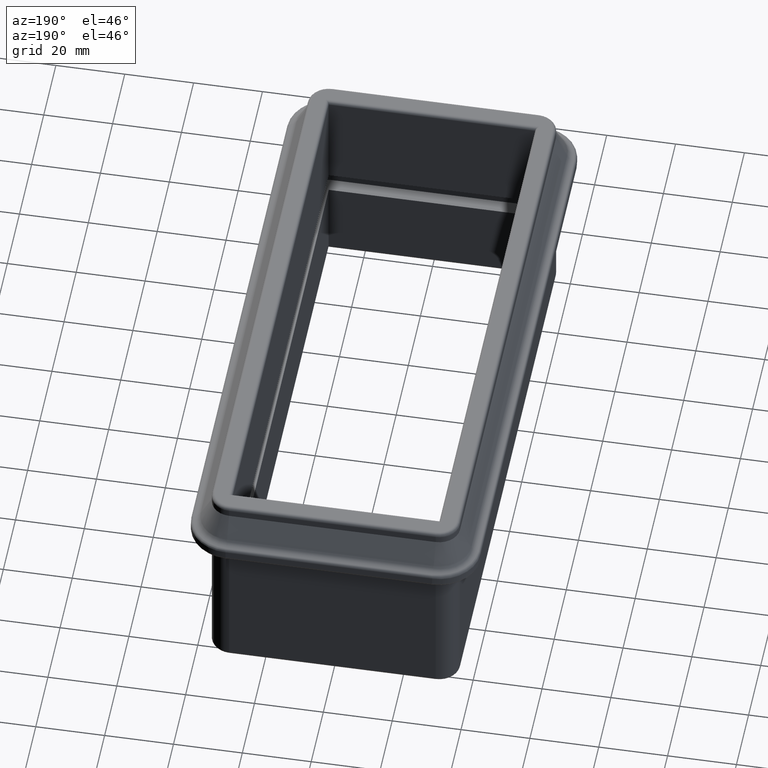
[diagram: clean part render]
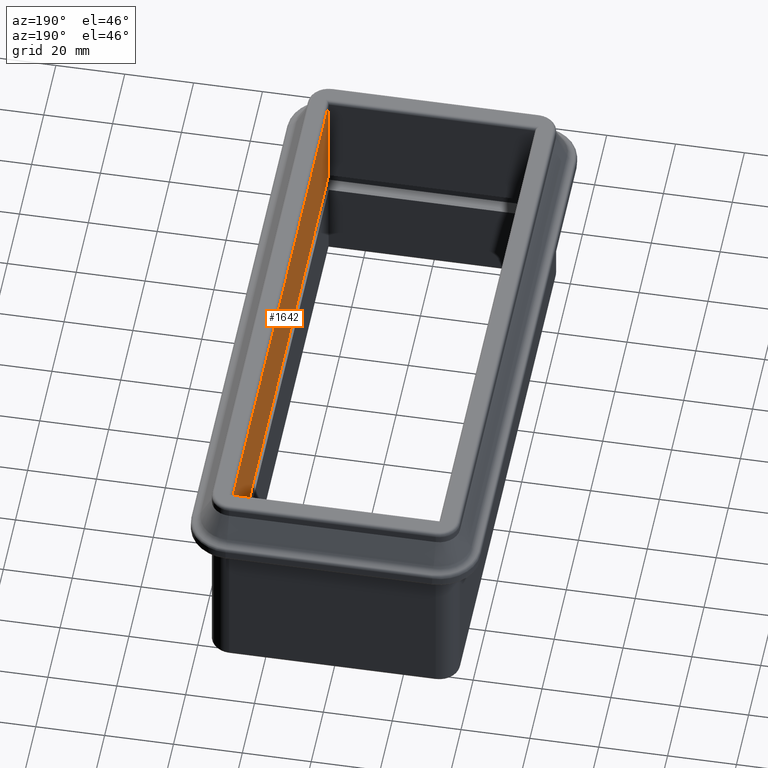
[diagram: same view with one face highlighted and labeled with its STEP entity id]
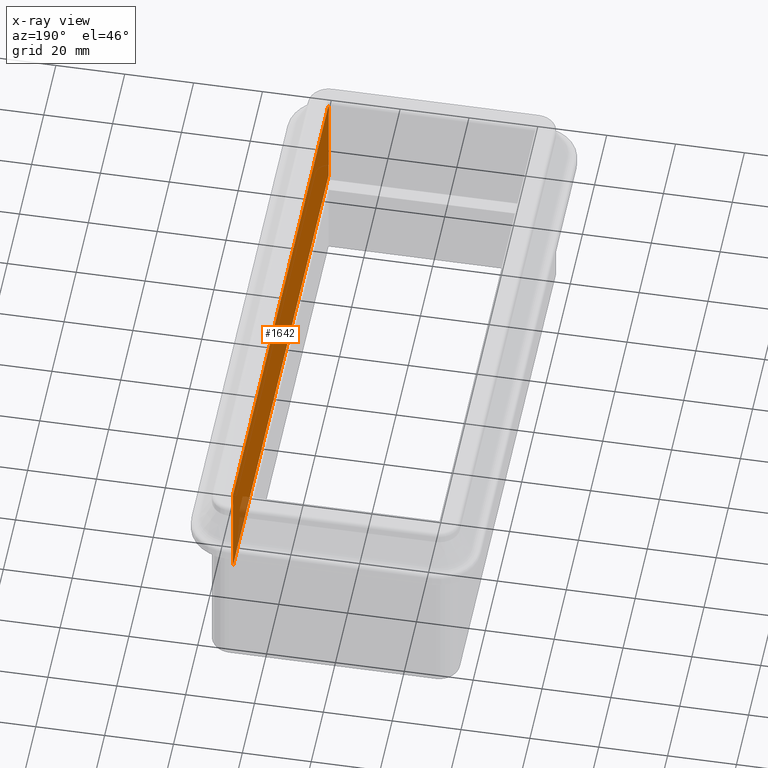
[diagram: x-ray of the same camera — body ghosted, the highlighted face saturated]
A machine part, auxiliary view. The second image highlights one B-rep face of the part: STEP entity #1642.
The next image is the same camera in x-ray: the body ghosted, the highlighted face saturated — about 4% of this face is hidden behind the body in this view.
In plain terms, the highlighted planar face has unit normal (-1, -0, -0).
Its self-contained STEP definition (entity closure, byte-faithful):
#41=PLANE('',#1856);
#155=FACE_OUTER_BOUND('',#266,.T.);
#266=EDGE_LOOP('',(#1332,#1333,#1334,#1335));
#380=LINE('',#2801,#508);
#384=LINE('',#2815,#512);
#387=LINE('',#2821,#515);
#388=LINE('',#2822,#516);
#508=VECTOR('',#2284,10.);
#512=VECTOR('',#2302,10.);
#515=VECTOR('',#2307,10.);
#516=VECTOR('',#2308,10.);
#760=VERTEX_POINT('',#2798);
#761=VERTEX_POINT('',#2800);
#764=VERTEX_POINT('',#2814);
#766=VERTEX_POINT('',#2820);
#958=EDGE_CURVE('',#760,#761,#380,.T.);
#965=EDGE_CURVE('',#764,#761,#384,.T.);
#968=EDGE_CURVE('',#766,#760,#387,.T.);
#969=EDGE_CURVE('',#764,#766,#388,.T.);
#1332=ORIENTED_EDGE('',*,*,#958,.F.);
#1333=ORIENTED_EDGE('',*,*,#968,.F.);
#1334=ORIENTED_EDGE('',*,*,#969,.F.);
#1335=ORIENTED_EDGE('',*,*,#965,.T.);
#1642=ADVANCED_FACE('',(#155),#41,.T.);
#1856=AXIS2_PLACEMENT_3D('',#2819,#2305,#2306);
#2284=DIRECTION('',(1.6864147209496E-16,-1.,0.));
#2302=DIRECTION('',(-3.67237831141568E-31,4.44089209850063E-16,1.));
#2305=DIRECTION('center_axis',(-1.,-1.6864147209496E-16,-4.44089209850063E-16));
#2306=DIRECTION('ref_axis',(-4.44089209850063E-16,-4.42223702147498E-32,
1.));
#2307=DIRECTION('',(-4.44089209850063E-16,-4.42223702147498E-32,1.));
#2308=DIRECTION('',(-1.55793749041947E-16,1.,0.));
#2798=CARTESIAN_POINT('',(29.9999999999999,79.,29.));
#2800=CARTESIAN_POINT('',(30.,-78.9999999999999,29.));
#2801=CARTESIAN_POINT('',(30.,-79.,29.));
#2814=CARTESIAN_POINT('',(30.,-78.9999999999999,-1.02168426782703E-15));
#2815=CARTESIAN_POINT('',(30.,-78.9999999999999,30.));
#2819=CARTESIAN_POINT('Origin',(30.,-79.,0.));
#2820=CARTESIAN_POINT('',(29.9999999999999,79.,-1.02168426782703E-15));
#2821=CARTESIAN_POINT('',(29.9999999999999,79.,30.));
#2822=CARTESIAN_POINT('',(30.,-79.,-1.02168426782703E-15));